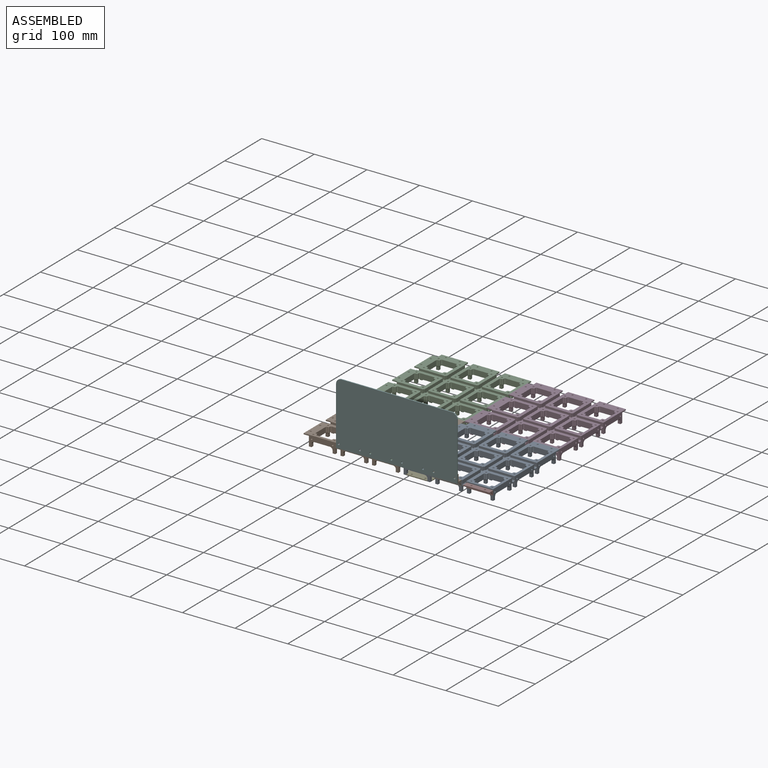
[diagram: assembled view]
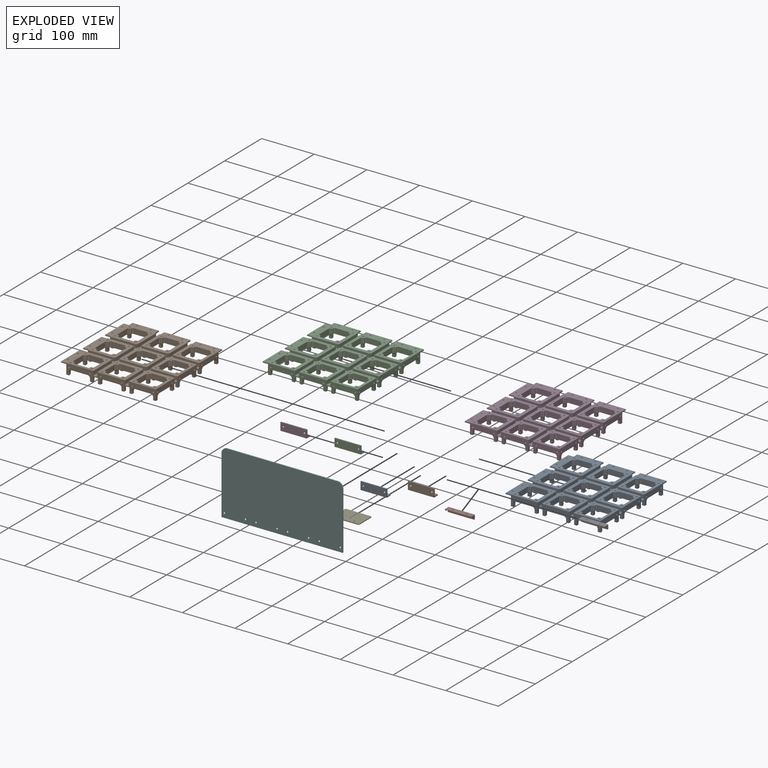
[diagram: exploded view]
GUIDED TOUR — FREECAD ASSEMBLY "BackplaneAssembled"

This assembly has 12 components, labeled P0..P11 below (a component is one placed body or linked part; the same part can appear more than once), held together by 0 modeled joints plus 27 derived contact edges. A joint is a constraint between two components; its type names the relative motion it leaves free:
  CONTACT — a derived adjacency edge — the two components touch in the source model (clearance under 2% of the assembly's diagonal); it is measured from the geometry, not a modeled constraint.
Axis/direction vectors are unit vectors and 'through' points are millimeter coordinates, both in the assembly's world frame.

MATES
  1. CONTACT "contact_0_1": P0 <-> P1, contact direction (1.000, 0.000, 0.000) through (55.00, -10.00, 18.00) mm (derived from contact, not a modeled constraint)
  2. CONTACT "contact_0_2": P0 <-> P2, contact direction (-1.000, 0.000, 0.000) through (-5.00, -10.00, 18.00) mm (derived from contact, not a modeled constraint)
  3. CONTACT "contact_0_5": P0 <-> P5, contact direction (0.000, -1.000, 0.000) through (5.73, -10.00, 24.52) mm (derived from contact, not a modeled constraint)
  4. CONTACT "contact_0_6": P0 <-> P6, contact direction (1.000, 0.000, 0.000) through (55.00, -10.00, 18.00) mm (derived from contact, not a modeled constraint)
  5. CONTACT "contact_0_8": P0 <-> P8, contact direction (0.000, 1.000, 0.000) through (0.00, 0.00, 18.00) mm (derived from contact, not a modeled constraint)
  6. CONTACT "contact_0_9": P0 <-> P9, contact direction (-1.000, 0.000, 0.000) through (-5.00, 0.00, 20.00) mm (derived from contact, not a modeled constraint)
  7. CONTACT "contact_1_5": P1 <-> P5, contact direction (0.000, -1.000, 0.000) through (110.00, -10.00, 18.00) mm (derived from contact, not a modeled constraint)
  8. CONTACT "contact_1_6": P1 <-> P6, contact direction (0.000, 0.000, -1.000) through (110.00, -10.00, 18.00) mm (derived from contact, not a modeled constraint)
  9. CONTACT "contact_1_7": P1 <-> P7, contact direction (1.000, 0.000, 0.000) through (115.00, -10.00, 18.00) mm (derived from contact, not a modeled constraint)
  10. CONTACT "contact_1_8": P1 <-> P8, contact direction (0.000, 1.000, 0.000) through (61.93, 0.00, 16.52) mm (derived from contact, not a modeled constraint)
  11. CONTACT "contact_2_3": P2 <-> P3, contact direction (-1.000, 0.000, 0.000) through (-65.00, -10.00, 18.00) mm (derived from contact, not a modeled constraint)
  12. CONTACT "contact_2_5": P2 <-> P5, contact direction (0.000, -1.000, 0.000) through (-14.27, -10.00, 24.52) mm (derived from contact, not a modeled constraint)
  13. CONTACT "contact_2_8": P2 <-> P8, contact direction (0.000, 0.000, -1.000) through (-10.00, 0.00, 18.00) mm (derived from contact, not a modeled constraint)
  14. CONTACT "contact_2_9": P2 <-> P9, contact direction (-0.334, 0.941, -0.060) through (-10.00, 0.00, 20.00) mm (derived from contact, not a modeled constraint)
  15. CONTACT "contact_3_5": P3 <-> P5, contact direction (0.000, -1.000, 0.000) through (-120.00, -10.00, 18.00) mm (derived from contact, not a modeled constraint)
  16. CONTACT "contact_3_9": P3 <-> P9, contact direction (0.000, 1.000, 0.000) through (-118.07, 0.00, 16.52) mm (derived from contact, not a modeled constraint)
  17. CONTACT "contact_4_8": P4 <-> P8, contact direction (0.000, 1.000, 0.000) through (0.00, 3.50, 3.30) mm (derived from contact, not a modeled constraint)
  18. CONTACT "contact_5_6": P5 <-> P6, contact direction (0.000, 1.000, 0.000) through (110.00, -10.00, 18.00) mm (derived from contact, not a modeled constraint)
  19. CONTACT "contact_5_7": P5 <-> P7, contact direction (1.000, 0.000, 0.000) through (115.00, -10.00, 18.00) mm (derived from contact, not a modeled constraint)
  20. CONTACT "contact_6_7": P6 <-> P7, contact direction (1.000, 0.000, 0.000) through (115.00, 0.00, 10.00) mm (derived from contact, not a modeled constraint)
  21. CONTACT "contact_6_8": P6 <-> P8, contact direction (0.000, 1.000, 0.000) through (66.62, 0.00, 14.00) mm (derived from contact, not a modeled constraint)
  22. CONTACT "contact_7_8": P7 <-> P8, contact direction (-0.334, 0.941, -0.060) through (123.69, 0.00, 13.04) mm (derived from contact, not a modeled constraint)
  23. CONTACT "contact_8_9": P8 <-> P9, contact direction (-1.000, 0.000, 0.000) through (-10.00, 0.00, 19.00) mm (derived from contact, not a modeled constraint)
  24. CONTACT "contact_8_11": P8 <-> P11, contact direction (0.000, 1.000, 0.000) through (50.00, 180.00, 19.00) mm (derived from contact, not a modeled constraint)
  25. CONTACT "contact_9_10": P9 <-> P10, contact direction (0.000, 1.000, 0.000) through (-130.00, 180.00, 19.00) mm (derived from contact, not a modeled constraint)
  26. CONTACT "contact_9_11": P9 <-> P11, contact direction (0.000, 0.000, 1.000) through (-10.00, 175.00, 19.00) mm (derived from contact, not a modeled constraint)
  27. CONTACT "contact_10_11": P10 <-> P11, contact direction (1.000, 0.000, 0.000) through (-10.00, 180.00, 19.00) mm (derived from contact, not a modeled constraint)

ASSEMBLY ORDER
  1. P11 — the base component [order verified]
  2. P8 [order verified]
  3. P6 [order verified]
  4. P1 [order verified]
  5. P0 [order verified]
  6. P7 [order verified]
  7. P2 [order verified]
  8. P3 [order verified]
  9. P10 [order verified]
  10. P9 [order verified]
  11. P4 [order verified]
  12. P5 [order verified]
Order-tag legend:
  [order verified] — this step's position reverses a verified removal order: the component was checked to insert without passing through the ones already placed.

Of the 12 components, 10 carry a construction recipe — the FreeCAD feature program (sketches with constraints, then the solid features that consume them) that regenerates the part from scratch, quoted from this document or from the linked companion document it references; the rest are supplied as boundary geometry only. The tour below walks the components in assembly order: each is shown spotlighted twice — in the assembled view, then in the exploded view, where a leader line traces a displaced component back to its assembled socket (components that stay in place when exploded have no leader line; saturated green if recipe-attached, orange if geometry-only; every other component desaturated gray) — followed by its recipe or geometry summary and the mates that hold it.
NOTE — document 3 of 6 of this assembly tour. The two overview renders and the header above are repeated from document 1; the component sections below continue where the previous document stopped.
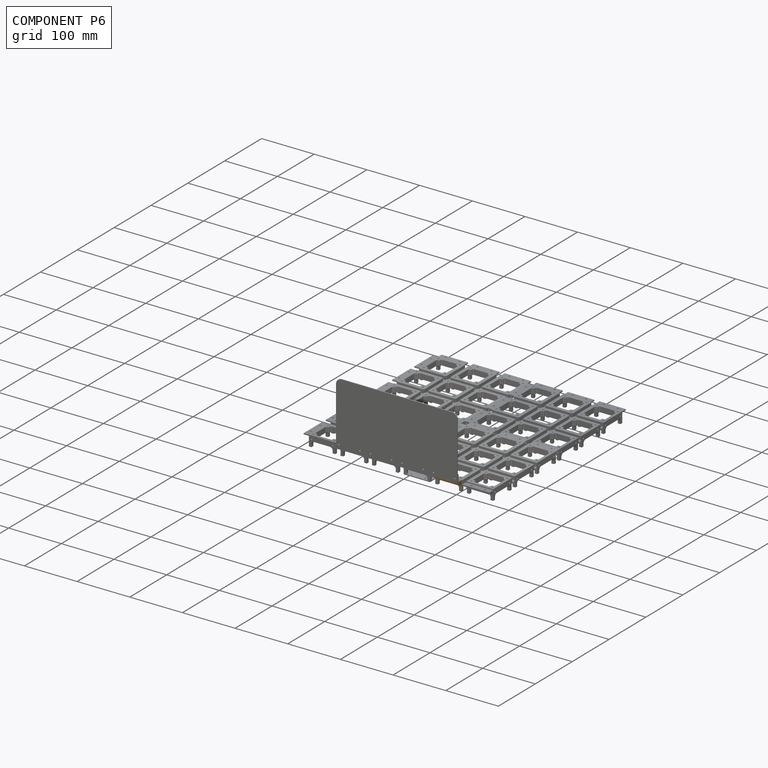
[diagram: component P6 — assembled]
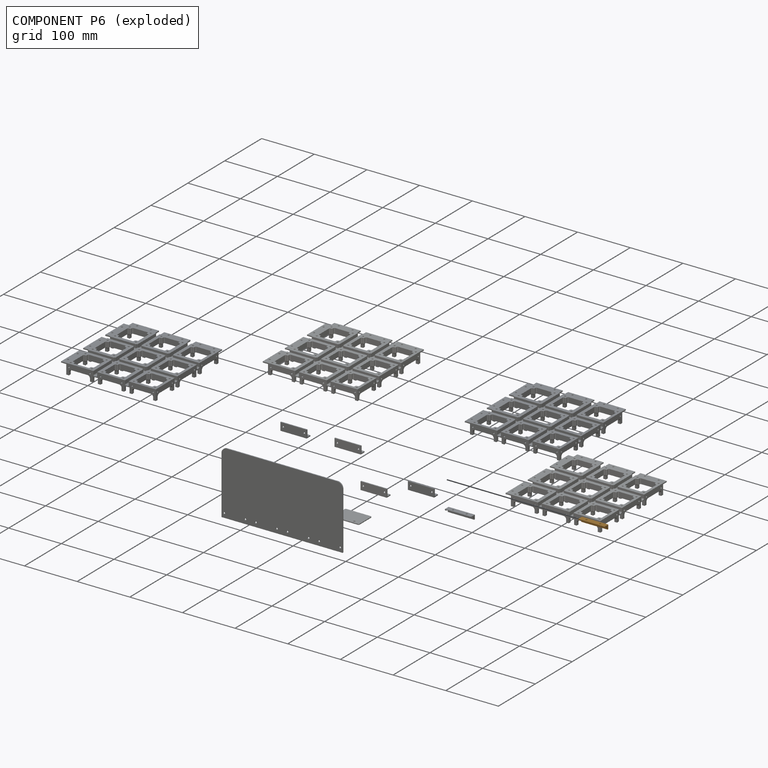
[diagram: component P6 — exploded]
COMPONENT P6 — geometry summary ("Support001"; no construction recipe available for this part):
  bounding box: 50.0 x 10.0 x 8.0 mm
  tessellated surface: 1,856 triangles
  volume: 1687 mm^3 (42% of its bounding box)
  symmetry: mirror-symmetric across its x mid-plane
Held by: resting contact with P0 (derived edge); resting contact with P1 (derived edge); resting contact with P5 (derived edge); resting contact with P7 (derived edge); resting contact with P8 (derived edge).
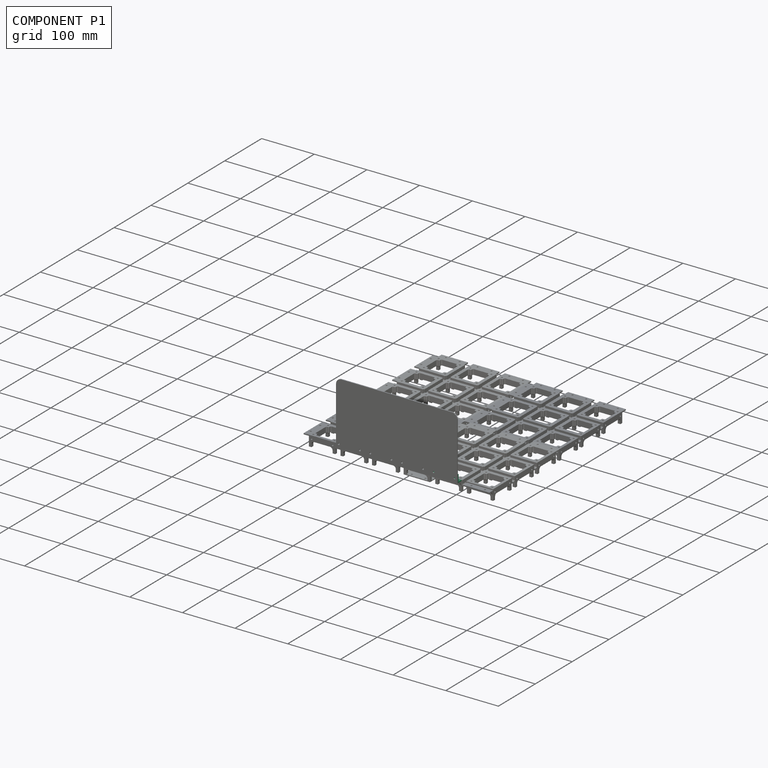
[diagram: component P1 — assembled]
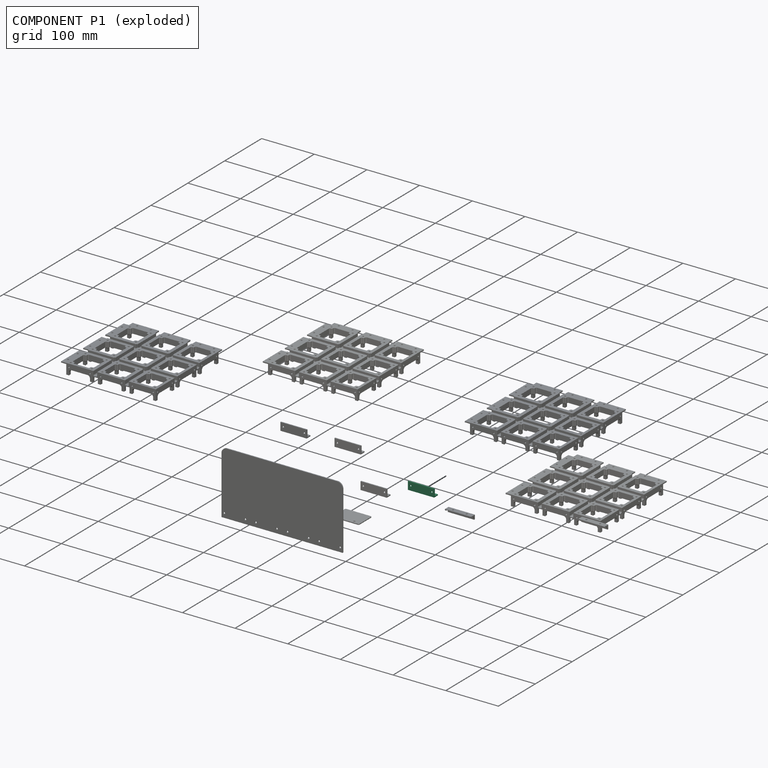
[diagram: component P1 — exploded]
COMPONENT P1 — recipe-attached ("LBracket001", modeled in this document).
Held by: resting contact with P0 (derived edge); resting contact with P5 (derived edge); resting contact with P6 (derived edge); resting contact with P7 (derived edge); resting contact with P8 (derived edge).
Construction recipe (the document's own serialized feature program — sketch geometry with constraints, then the solid features built on it; lengths are millimeters unless a unit is written):

FEATURE [Sketcher::SketchObject] Sketch242
  FullyConstrained = true
  MapMode = 5
  Placement = pos=(0,0,0) rot=(0.57735,0.57735,0.57735;2.0944rad)
  Support = -> [YZ_Plane045]
  sketch-geometry (6):
    g0: LineSegment StartX=0 StartY=0 StartZ=0 EndX=0 EndY=15 EndZ=0
    g1: LineSegment StartX=0 StartY=15 StartZ=0 EndX=2 EndY=15 EndZ=0
    g2: LineSegment StartX=2 StartY=15 StartZ=0 EndX=2 EndY=2 EndZ=0
    g3: LineSegment StartX=2 StartY=2 StartZ=0 EndX=10 EndY=2 EndZ=0
    g4: LineSegment StartX=10 StartY=0 StartZ=0 EndX=0 EndY=0 EndZ=0
    g5: LineSegment StartX=10 StartY=2 StartZ=0 EndX=10 EndY=0 EndZ=0
  constraints (17):
    c: PointOnObject(g0,g-2)
    c: Coincident(g1,g0)
    c: Horizontal(g1)
    c: Coincident(g2,g1)
    c: Vertical(g2)
    c: Horizontal(g3)
    c: PointOnObject(g4,g-1)
    c: DistanceX(g1,g1) = 2
    c: DistanceX(g4,g4) = 10
    c: DistanceY(g0,g0) = 15
    c: Coincident(g5,g3)
    c: Coincident(g5,g4)
    c: Vertical(g5)
    c: DistanceY(g5,g5) = 2
    c: Coincident(g0,g4)
    c: Coincident(g0,g-1)
    c: Coincident(g2,g3)
FEATURE [PartDesign::Pad] Pad041
  Direction = (1,-2e-16,3e-16)
  Length = 50
  Length2 = 10
  Placement = pos=(0,0,0) rot=(0.57735,0.57735,0.57735;2.0944rad)
  Profile = -> Sketch242
  ReferenceAxis = -> Sketch242 [N_Axis]
  Type = 0
FEATURE [Sketcher::SketchObject] Sketch243
  ExternalGeometry = -> [Pad041]
  FullyConstrained = true
  MapMode = 5
  Placement = pos=(0,0,0) rot=(0.707107,0.707107,0;3.14159rad)
  Support = -> [Pad041]
  sketch-geometry (2):
    g0: Circle CenterX=5 CenterY=38 CenterZ=0 NormalX=0 NormalY=0 NormalZ=1 AngleXU=0 Radius=1.55
    g1: Circle CenterX=5 CenterY=12 CenterZ=0 NormalX=0 NormalY=0 NormalZ=1 AngleXU=0 Radius=1.55
  constraints (6):
    c: Diameter(g0) = 3.1
    c: Diameter(g1) = 3.1
    c: Distance(g0,g-3) = 5
    c: Distance(g1,g-3) = 5
    c: Distance(g1,g-5) = 12
    c: Distance(g0,g-4) = 12
FEATURE [PartDesign::Pocket] Pocket202
  BaseFeature = -> Pad041
  Direction = (-4e-16,6e-16,1)
  Length = 5
  Length2 = 5
  Placement = pos=(0,0,0) rot=(0.57735,0.57735,0.57735;2.0944rad)
  Profile = -> Sketch243
  ReferenceAxis = -> Sketch243 [N_Axis]
  Type = 1
FEATURE [Sketcher::SketchObject] Sketch244
  ExternalGeometry = -> [Pocket202]
  FullyConstrained = true
  MapMode = 5
  Placement = pos=(0,0,0) rot=(-0.57735,-0.57735,0.57735;4.18879rad)
  Support = -> [Pocket202]
  sketch-geometry (2):
    g0: Circle CenterX=-8 CenterY=45 CenterZ=0 NormalX=0 NormalY=0 NormalZ=1 AngleXU=0 Radius=1.55
    g1: Circle CenterX=-8 CenterY=5 CenterZ=0 NormalX=0 NormalY=0 NormalZ=1 AngleXU=0 Radius=1.55
  constraints (6):
    c: Diameter(g0) = 3.1
    c: Diameter(g1) = 3.1
    c: Distance(g0,g-4) = 5
    c: Distance(g0,g-3) = 7
    c: Distance(g1,g-5) = 5
    c: Distance(g1,g-3) = 7
FEATURE [PartDesign::Pocket] Pocket203
  BaseFeature = -> Pocket202
  Direction = (7e-16,1,-4e-16)
  Length = 5
  Length2 = 5
  Placement = pos=(0,0,0) rot=(0.57735,0.57735,0.57735;2.0944rad)
  Profile = -> Sketch244
  ReferenceAxis = -> Sketch244 [N_Axis]
  Type = 1
FEATURE [PartDesign::Body] Body042  label="LBracket001"
  Group = -> [Sketch242,Pad041,Sketch243,Pocket202,Sketch244,Pocket203]
  Origin = -> Origin045
  Placement = pos=(60,-10,18) rot=(0,0,1;0rad)
  Tip = -> Pocket203
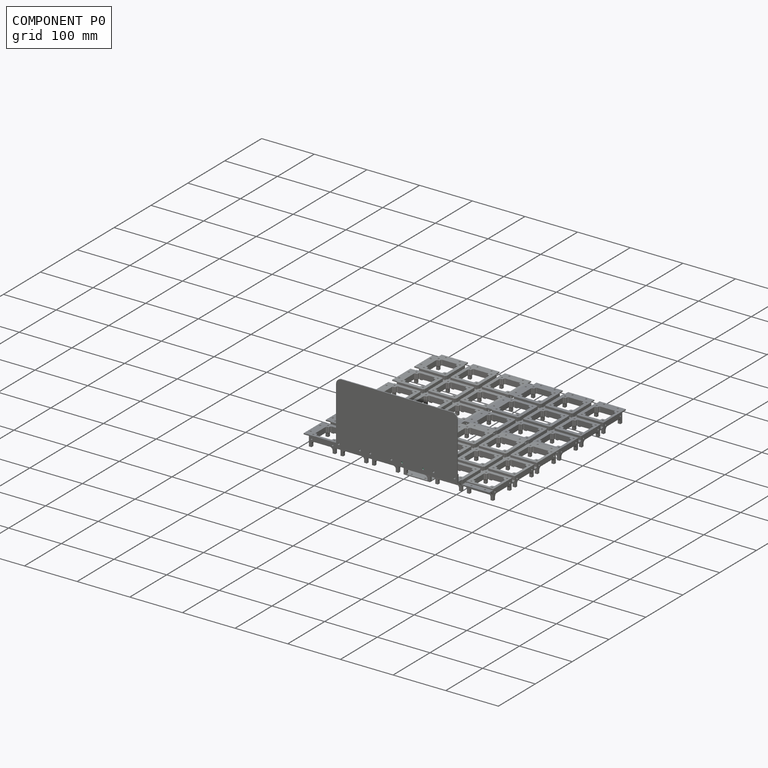
[diagram: component P0 — assembled]
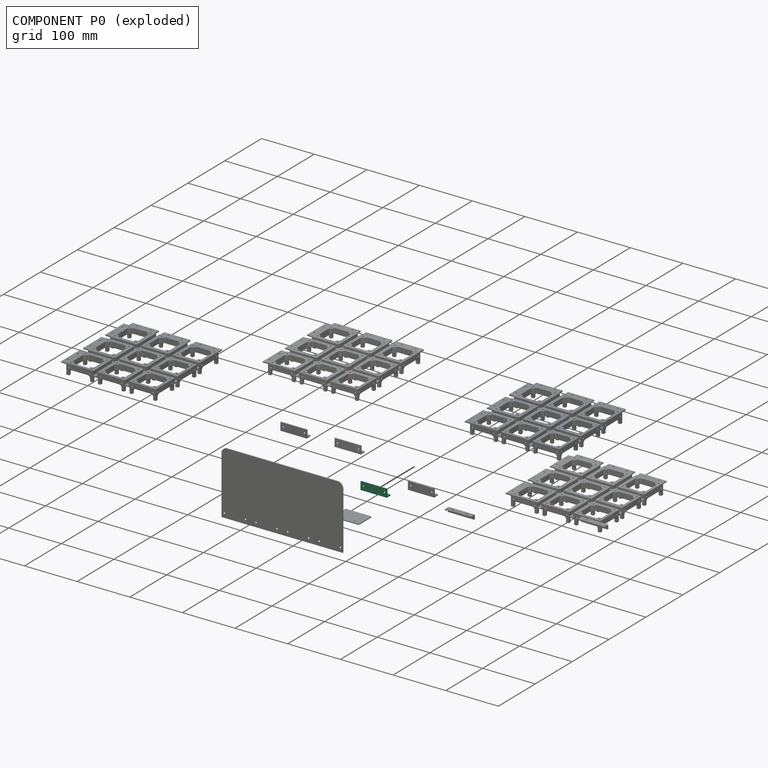
[diagram: component P0 — exploded]
COMPONENT P0 — recipe-attached ("LBracket", modeled in this document).
Held by: resting contact with P1 (derived edge); resting contact with P2 (derived edge); resting contact with P5 (derived edge); resting contact with P6 (derived edge); resting contact with P8 (derived edge); resting contact with P9 (derived edge).
Construction recipe (the document's own serialized feature program — sketch geometry with constraints, then the solid features built on it; lengths are millimeters unless a unit is written):

FEATURE [Sketcher::SketchObject] Sketch239
  FullyConstrained = true
  MapMode = 5
  Placement = pos=(0,0,0) rot=(0.57735,0.57735,0.57735;2.0944rad)
  Support = -> [YZ_Plane044]
  sketch-geometry (6):
    g0: LineSegment StartX=0 StartY=0 StartZ=0 EndX=0 EndY=15 EndZ=0
    g1: LineSegment StartX=0 StartY=15 StartZ=0 EndX=2 EndY=15 EndZ=0
    g2: LineSegment StartX=2 StartY=15 StartZ=0 EndX=2 EndY=2 EndZ=0
    g3: LineSegment StartX=2 StartY=2 StartZ=0 EndX=10 EndY=2 EndZ=0
    g4: LineSegment StartX=10 StartY=0 StartZ=0 EndX=0 EndY=0 EndZ=0
    g5: LineSegment StartX=10 StartY=2 StartZ=0 EndX=10 EndY=0 EndZ=0
  constraints (17):
    c: PointOnObject(g0,g-2)
    c: Coincident(g1,g0)
    c: Horizontal(g1)
    c: Coincident(g2,g1)
    c: Vertical(g2)
    c: Horizontal(g3)
    c: PointOnObject(g4,g-1)
    c: DistanceX(g1,g1) = 2
    c: DistanceX(g4,g4) = 10
    c: DistanceY(g0,g0) = 15
    c: Coincident(g5,g3)
    c: Coincident(g5,g4)
    c: Vertical(g5)
    c: DistanceY(g5,g5) = 2
    c: Coincident(g0,g4)
    c: Coincident(g0,g-1)
    c: Coincident(g2,g3)
FEATURE [PartDesign::Pad] Pad040
  Direction = (1,-2e-16,3e-16)
  Length = 50
  Length2 = 10
  Placement = pos=(0,0,0) rot=(0.57735,0.57735,0.57735;2.0944rad)
  Profile = -> Sketch239
  ReferenceAxis = -> Sketch239 [N_Axis]
  Type = 0
FEATURE [Sketcher::SketchObject] Sketch240
  ExternalGeometry = -> [Pad040]
  FullyConstrained = true
  MapMode = 5
  Placement = pos=(0,0,0) rot=(0.707107,0.707107,0;3.14159rad)
  Support = -> [Pad040]
  sketch-geometry (2):
    g0: Circle CenterX=5 CenterY=38 CenterZ=0 NormalX=0 NormalY=0 NormalZ=1 AngleXU=0 Radius=1.55
    g1: Circle CenterX=5 CenterY=12 CenterZ=0 NormalX=0 NormalY=0 NormalZ=1 AngleXU=0 Radius=1.55
  constraints (6):
    c: Diameter(g0) = 3.1
    c: Diameter(g1) = 3.1
    c: Distance(g0,g-3) = 5
    c: Distance(g1,g-3) = 5
    c: Distance(g1,g-5) = 12
    c: Distance(g0,g-4) = 12
FEATURE [PartDesign::Pocket] Pocket200
  BaseFeature = -> Pad040
  Direction = (-4e-16,6e-16,1)
  Length = 5
  Length2 = 5
  Placement = pos=(0,0,0) rot=(0.57735,0.57735,0.57735;2.0944rad)
  Profile = -> Sketch240
  ReferenceAxis = -> Sketch240 [N_Axis]
  Type = 1
FEATURE [Sketcher::SketchObject] Sketch241
  ExternalGeometry = -> [Pocket200]
  FullyConstrained = true
  MapMode = 5
  Placement = pos=(0,0,0) rot=(-0.57735,-0.57735,0.57735;4.18879rad)
  Support = -> [Pocket200]
  sketch-geometry (2):
    g0: Circle CenterX=-8 CenterY=45 CenterZ=0 NormalX=0 NormalY=0 NormalZ=1 AngleXU=0 Radius=1.55
    g1: Circle CenterX=-8 CenterY=5 CenterZ=0 NormalX=0 NormalY=0 NormalZ=1 AngleXU=0 Radius=1.55
  constraints (6):
    c: Diameter(g0) = 3.1
    c: Diameter(g1) = 3.1
    c: Distance(g0,g-4) = 5
    c: Distance(g0,g-3) = 7
    c: Distance(g1,g-5) = 5
    c: Distance(g1,g-3) = 7
FEATURE [PartDesign::Pocket] Pocket201
  BaseFeature = -> Pocket200
  Direction = (7e-16,1,-4e-16)
  Length = 5
  Length2 = 5
  Placement = pos=(0,0,0) rot=(0.57735,0.57735,0.57735;2.0944rad)
  Profile = -> Sketch241
  ReferenceAxis = -> Sketch241 [N_Axis]
  Type = 1
FEATURE [PartDesign::Body] Body041  label="LBracket"
  Group = -> [Sketch239,Pad040,Sketch240,Pocket200,Sketch241,Pocket201]
  Origin = -> Origin044
  Placement = pos=(0,-10,18) rot=(0,0,1;0rad)
  Tip = -> Pocket201
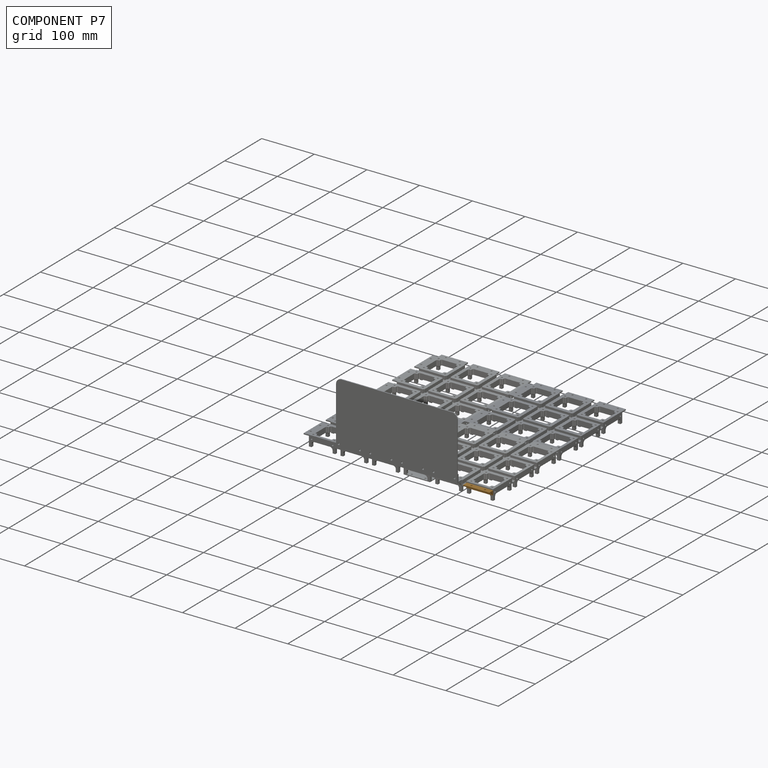
[diagram: component P7 — assembled]
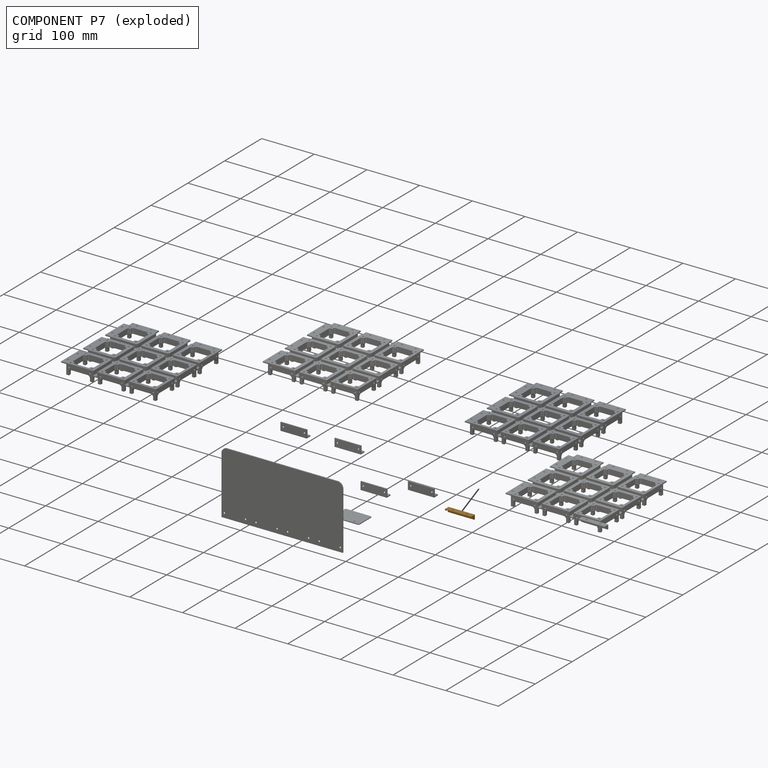
[diagram: component P7 — exploded]
COMPONENT P7 — geometry summary ("Support002"; no construction recipe available for this part):
  bounding box: 50.0 x 10.0 x 8.0 mm
  tessellated surface: 1,856 triangles
  volume: 1687 mm^3 (42% of its bounding box)
  symmetry: mirror-symmetric across its x mid-plane
Held by: resting contact with P1 (derived edge); resting contact with P5 (derived edge); resting contact with P6 (derived edge); resting contact with P8 (derived edge).
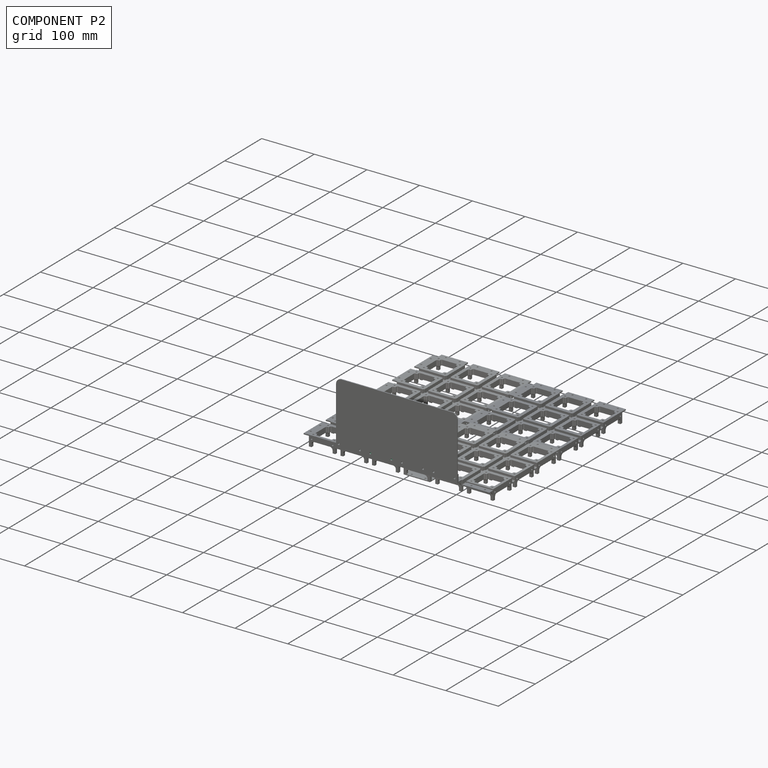
[diagram: component P2 — assembled]
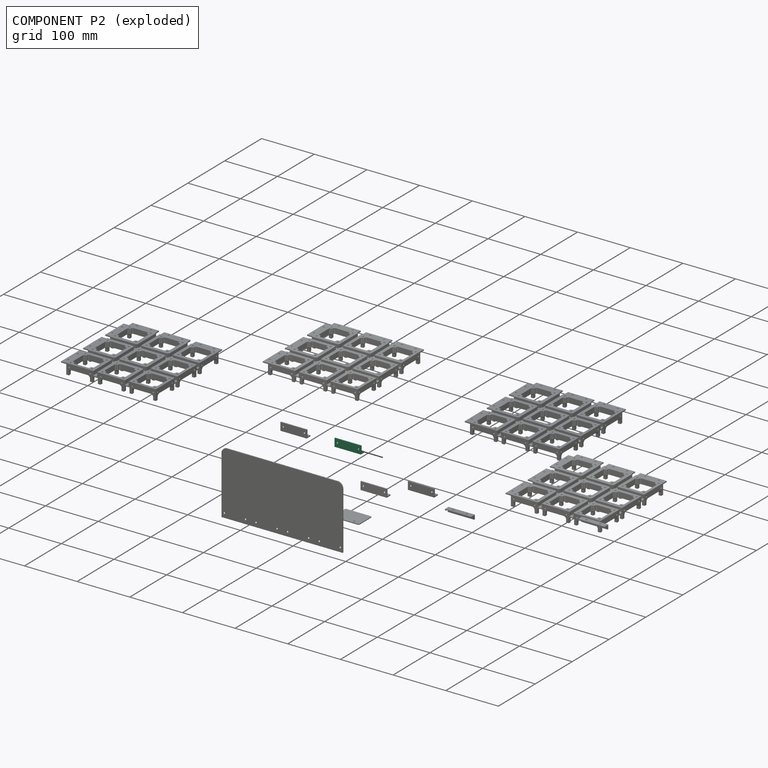
[diagram: component P2 — exploded]
COMPONENT P2 — recipe-attached ("LBracket002", modeled in this document).
Held by: resting contact with P0 (derived edge); resting contact with P3 (derived edge); resting contact with P5 (derived edge); resting contact with P8 (derived edge); resting contact with P9 (derived edge).
Construction recipe (the document's own serialized feature program — sketch geometry with constraints, then the solid features built on it; lengths are millimeters unless a unit is written):

FEATURE [Sketcher::SketchObject] Sketch245
  FullyConstrained = true
  MapMode = 5
  Placement = pos=(0,0,0) rot=(0.57735,0.57735,0.57735;2.0944rad)
  Support = -> [YZ_Plane046]
  sketch-geometry (6):
    g0: LineSegment StartX=0 StartY=0 StartZ=0 EndX=0 EndY=15 EndZ=0
    g1: LineSegment StartX=0 StartY=15 StartZ=0 EndX=2 EndY=15 EndZ=0
    g2: LineSegment StartX=2 StartY=15 StartZ=0 EndX=2 EndY=2 EndZ=0
    g3: LineSegment StartX=2 StartY=2 StartZ=0 EndX=10 EndY=2 EndZ=0
    g4: LineSegment StartX=10 StartY=0 StartZ=0 EndX=0 EndY=0 EndZ=0
    g5: LineSegment StartX=10 StartY=2 StartZ=0 EndX=10 EndY=0 EndZ=0
  constraints (17):
    c: PointOnObject(g0,g-2)
    c: Coincident(g1,g0)
    c: Horizontal(g1)
    c: Coincident(g2,g1)
    c: Vertical(g2)
    c: Horizontal(g3)
    c: PointOnObject(g4,g-1)
    c: DistanceX(g1,g1) = 2
    c: DistanceX(g4,g4) = 10
    c: DistanceY(g0,g0) = 15
    c: Coincident(g5,g3)
    c: Coincident(g5,g4)
    c: Vertical(g5)
    c: DistanceY(g5,g5) = 2
    c: Coincident(g0,g4)
    c: Coincident(g0,g-1)
    c: Coincident(g2,g3)
FEATURE [PartDesign::Pad] Pad042
  Direction = (1,-2e-16,3e-16)
  Length = 50
  Length2 = 10
  Placement = pos=(0,0,0) rot=(0.57735,0.57735,0.57735;2.0944rad)
  Profile = -> Sketch245
  ReferenceAxis = -> Sketch245 [N_Axis]
  Type = 0
FEATURE [Sketcher::SketchObject] Sketch246
  ExternalGeometry = -> [Pad042]
  FullyConstrained = true
  MapMode = 5
  Placement = pos=(0,0,0) rot=(0.707107,0.707107,0;3.14159rad)
  Support = -> [Pad042]
  sketch-geometry (2):
    g0: Circle CenterX=5 CenterY=38 CenterZ=0 NormalX=0 NormalY=0 NormalZ=1 AngleXU=0 Radius=1.55
    g1: Circle CenterX=5 CenterY=12 CenterZ=0 NormalX=0 NormalY=0 NormalZ=1 AngleXU=0 Radius=1.55
  constraints (6):
    c: Diameter(g0) = 3.1
    c: Diameter(g1) = 3.1
    c: Distance(g0,g-3) = 5
    c: Distance(g1,g-3) = 5
    c: Distance(g1,g-5) = 12
    c: Distance(g0,g-4) = 12
FEATURE [PartDesign::Pocket] Pocket204
  BaseFeature = -> Pad042
  Direction = (-4e-16,6e-16,1)
  Length = 5
  Length2 = 5
  Placement = pos=(0,0,0) rot=(0.57735,0.57735,0.57735;2.0944rad)
  Profile = -> Sketch246
  ReferenceAxis = -> Sketch246 [N_Axis]
  Type = 1
FEATURE [Sketcher::SketchObject] Sketch247
  ExternalGeometry = -> [Pocket204]
  FullyConstrained = true
  MapMode = 5
  Placement = pos=(0,0,0) rot=(-0.57735,-0.57735,0.57735;4.18879rad)
  Support = -> [Pocket204]
  sketch-geometry (2):
    g0: Circle CenterX=-8 CenterY=45 CenterZ=0 NormalX=0 NormalY=0 NormalZ=1 AngleXU=0 Radius=1.55
    g1: Circle CenterX=-8 CenterY=5 CenterZ=0 NormalX=0 NormalY=0 NormalZ=1 AngleXU=0 Radius=1.55
  constraints (6):
    c: Diameter(g0) = 3.1
    c: Diameter(g1) = 3.1
    c: Distance(g0,g-4) = 5
    c: Distance(g0,g-3) = 7
    c: Distance(g1,g-5) = 5
    c: Distance(g1,g-3) = 7
FEATURE [PartDesign::Pocket] Pocket205
  BaseFeature = -> Pocket204
  Direction = (7e-16,1,-4e-16)
  Length = 5
  Length2 = 5
  Placement = pos=(0,0,0) rot=(0.57735,0.57735,0.57735;2.0944rad)
  Profile = -> Sketch247
  ReferenceAxis = -> Sketch247 [N_Axis]
  Type = 1
FEATURE [PartDesign::Body] Body043  label="LBracket002"
  Group = -> [Sketch245,Pad042,Sketch246,Pocket204,Sketch247,Pocket205]
  Origin = -> Origin046
  Placement = pos=(-60,-10,18) rot=(0,0,1;0rad)
  Tip = -> Pocket205
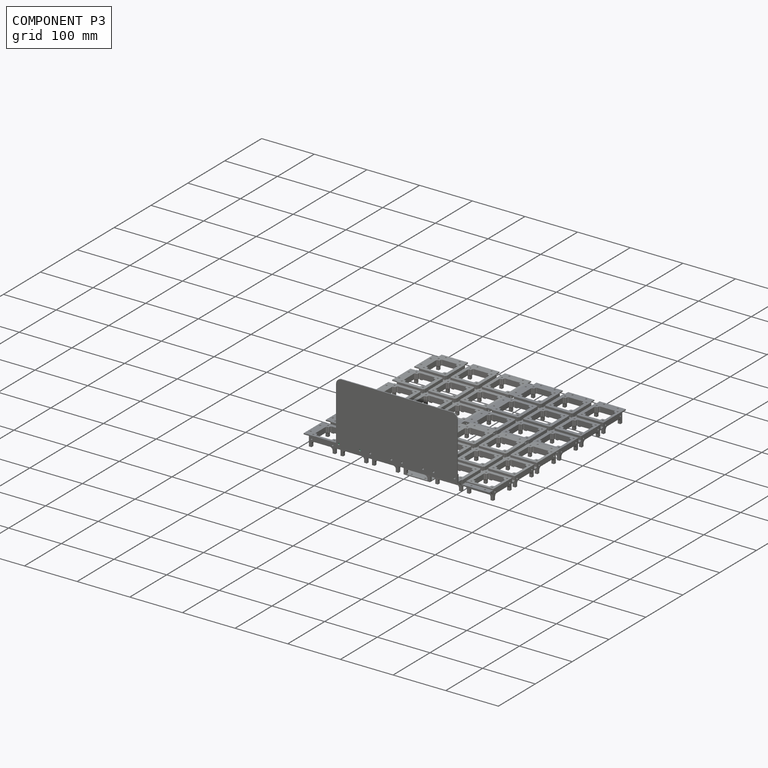
[diagram: component P3 — assembled]
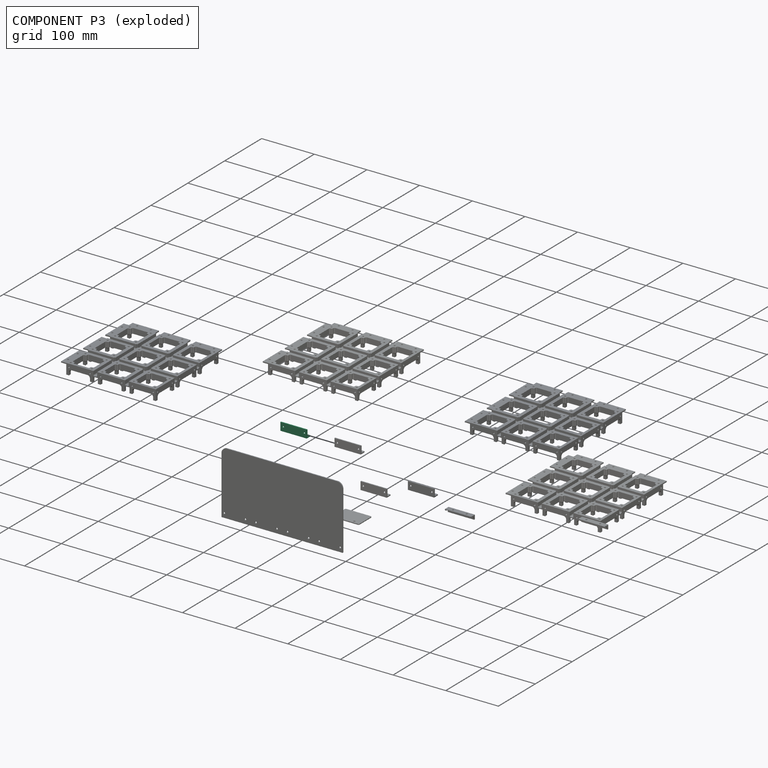
[diagram: component P3 — exploded]
COMPONENT P3 — recipe-attached ("LBracket003", modeled in this document).
Held by: resting contact with P2 (derived edge); resting contact with P5 (derived edge); resting contact with P9 (derived edge).
Construction recipe (the document's own serialized feature program — sketch geometry with constraints, then the solid features built on it; lengths are millimeters unless a unit is written):

FEATURE [Sketcher::SketchObject] Sketch248
  FullyConstrained = true
  MapMode = 5
  Placement = pos=(0,0,0) rot=(0.57735,0.57735,0.57735;2.0944rad)
  Support = -> [YZ_Plane047]
  sketch-geometry (6):
    g0: LineSegment StartX=0 StartY=0 StartZ=0 EndX=0 EndY=15 EndZ=0
    g1: LineSegment StartX=0 StartY=15 StartZ=0 EndX=2 EndY=15 EndZ=0
    g2: LineSegment StartX=2 StartY=15 StartZ=0 EndX=2 EndY=2 EndZ=0
    g3: LineSegment StartX=2 StartY=2 StartZ=0 EndX=10 EndY=2 EndZ=0
    g4: LineSegment StartX=10 StartY=0 StartZ=0 EndX=0 EndY=0 EndZ=0
    g5: LineSegment StartX=10 StartY=2 StartZ=0 EndX=10 EndY=0 EndZ=0
  constraints (17):
    c: PointOnObject(g0,g-2)
    c: Coincident(g1,g0)
    c: Horizontal(g1)
    c: Coincident(g2,g1)
    c: Vertical(g2)
    c: Horizontal(g3)
    c: PointOnObject(g4,g-1)
    c: DistanceX(g1,g1) = 2
    c: DistanceX(g4,g4) = 10
    c: DistanceY(g0,g0) = 15
    c: Coincident(g5,g3)
    c: Coincident(g5,g4)
    c: Vertical(g5)
    c: DistanceY(g5,g5) = 2
    c: Coincident(g0,g4)
    c: Coincident(g0,g-1)
    c: Coincident(g2,g3)
FEATURE [PartDesign::Pad] Pad043
  Direction = (1,-2e-16,3e-16)
  Length = 50
  Length2 = 10
  Placement = pos=(0,0,0) rot=(0.57735,0.57735,0.57735;2.0944rad)
  Profile = -> Sketch248
  ReferenceAxis = -> Sketch248 [N_Axis]
  Type = 0
FEATURE [Sketcher::SketchObject] Sketch249
  ExternalGeometry = -> [Pad043]
  FullyConstrained = true
  MapMode = 5
  Placement = pos=(0,0,0) rot=(0.707107,0.707107,0;3.14159rad)
  Support = -> [Pad043]
  sketch-geometry (2):
    g0: Circle CenterX=5 CenterY=38 CenterZ=0 NormalX=0 NormalY=0 NormalZ=1 AngleXU=0 Radius=1.55
    g1: Circle CenterX=5 CenterY=12 CenterZ=0 NormalX=0 NormalY=0 NormalZ=1 AngleXU=0 Radius=1.55
  constraints (6):
    c: Diameter(g0) = 3.1
    c: Diameter(g1) = 3.1
    c: Distance(g0,g-3) = 5
    c: Distance(g1,g-3) = 5
    c: Distance(g1,g-5) = 12
    c: Distance(g0,g-4) = 12
FEATURE [PartDesign::Pocket] Pocket206
  BaseFeature = -> Pad043
  Direction = (-4e-16,6e-16,1)
  Length = 5
  Length2 = 5
  Placement = pos=(0,0,0) rot=(0.57735,0.57735,0.57735;2.0944rad)
  Profile = -> Sketch249
  ReferenceAxis = -> Sketch249 [N_Axis]
  Type = 1
FEATURE [Sketcher::SketchObject] Sketch250
  ExternalGeometry = -> [Pocket206]
  FullyConstrained = true
  MapMode = 5
  Placement = pos=(0,0,0) rot=(-0.57735,-0.57735,0.57735;4.18879rad)
  Support = -> [Pocket206]
  sketch-geometry (2):
    g0: Circle CenterX=-8 CenterY=45 CenterZ=0 NormalX=0 NormalY=0 NormalZ=1 AngleXU=0 Radius=1.55
    g1: Circle CenterX=-8 CenterY=5 CenterZ=0 NormalX=0 NormalY=0 NormalZ=1 AngleXU=0 Radius=1.55
  constraints (6):
    c: Diameter(g0) = 3.1
    c: Diameter(g1) = 3.1
    c: Distance(g0,g-4) = 5
    c: Distance(g0,g-3) = 7
    c: Distance(g1,g-5) = 5
    c: Distance(g1,g-3) = 7
FEATURE [PartDesign::Pocket] Pocket207
  BaseFeature = -> Pocket206
  Direction = (7e-16,1,-4e-16)
  Length = 5
  Length2 = 5
  Placement = pos=(0,0,0) rot=(0.57735,0.57735,0.57735;2.0944rad)
  Profile = -> Sketch250
  ReferenceAxis = -> Sketch250 [N_Axis]
  Type = 1
FEATURE [PartDesign::Body] Body044  label="LBracket003"
  Group = -> [Sketch248,Pad043,Sketch249,Pocket206,Sketch250,Pocket207]
  Origin = -> Origin047
  Placement = pos=(-120,-10,18) rot=(0,0,1;0rad)
  Tip = -> Pocket207
